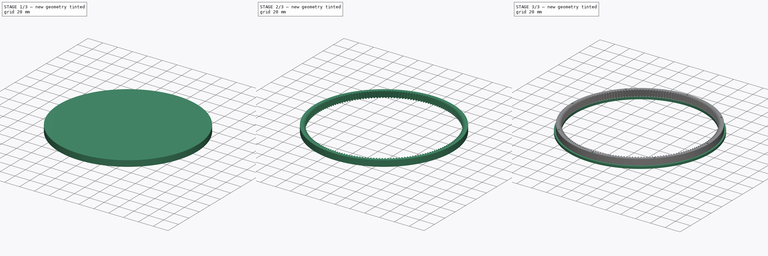
[diagram: build sequence overview — one tinted view per stage of 3, left to right]
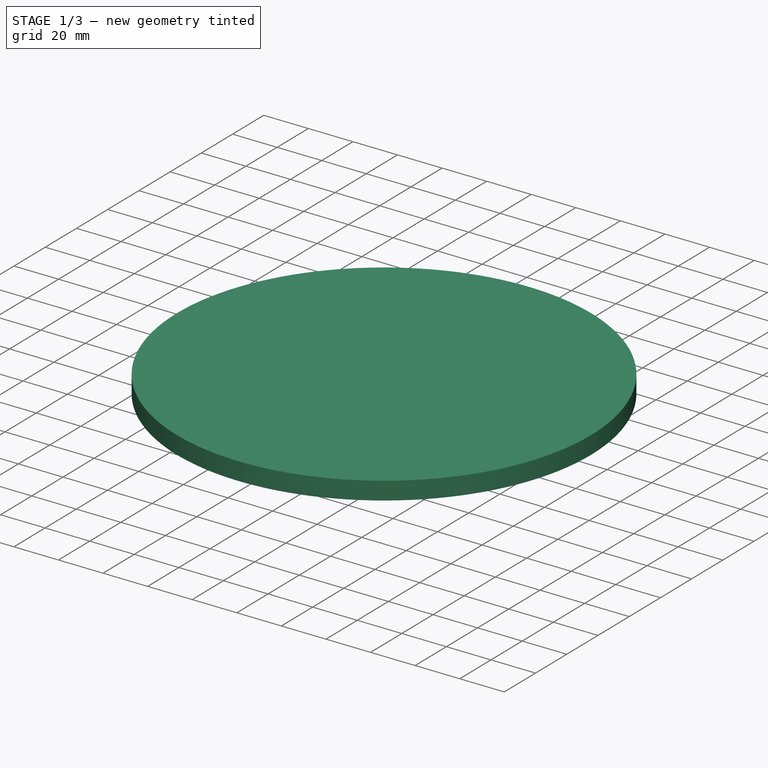
[diagram: stage 1 of 3 — iso view after this stage's code; geometry added in this stage tinted green]
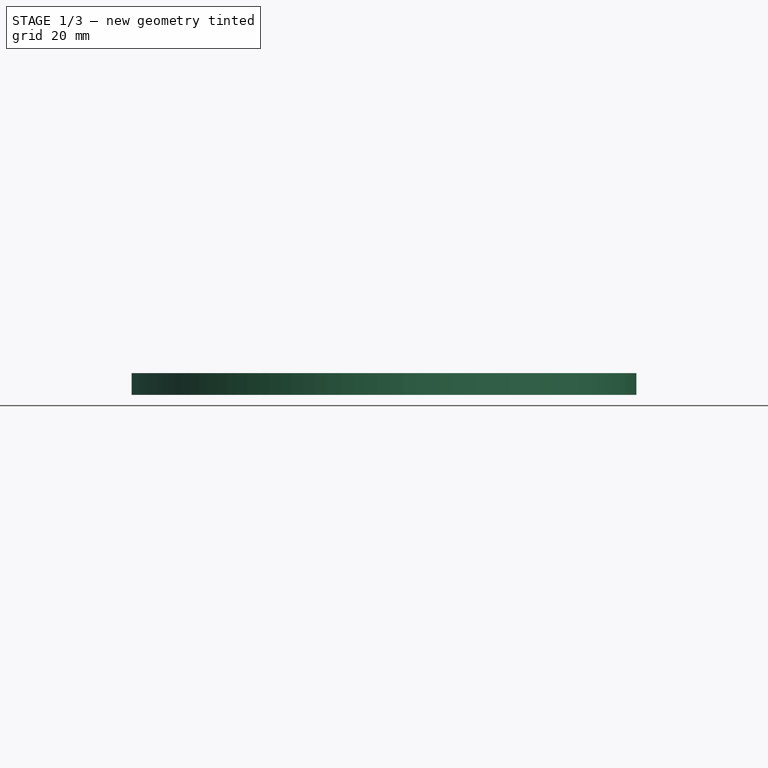
[diagram: stage 1 of 3 — front view after this stage's code; geometry added in this stage tinted green]
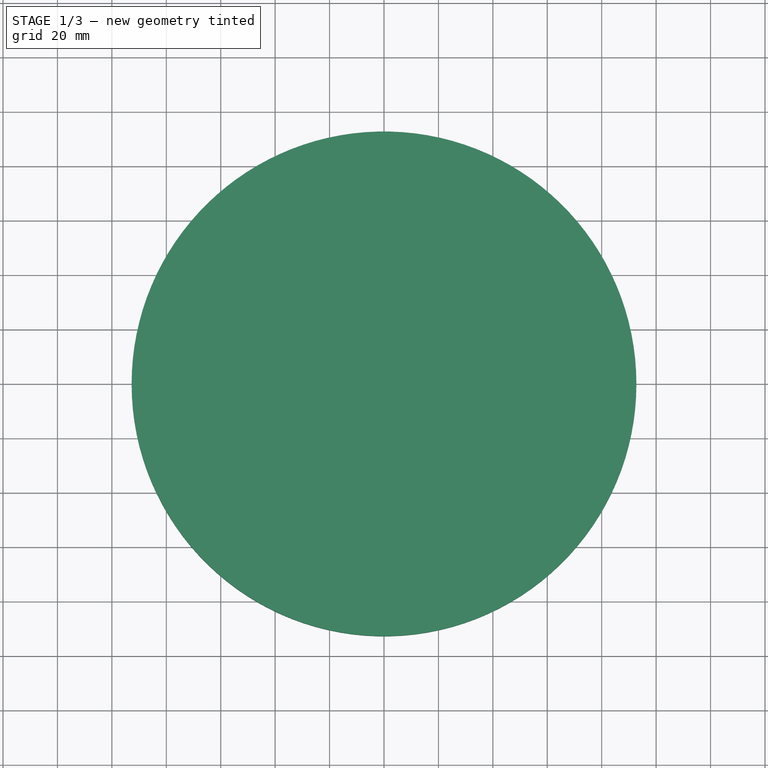
[diagram: stage 1 of 3 — top view after this stage's code; geometry added in this stage tinted green]
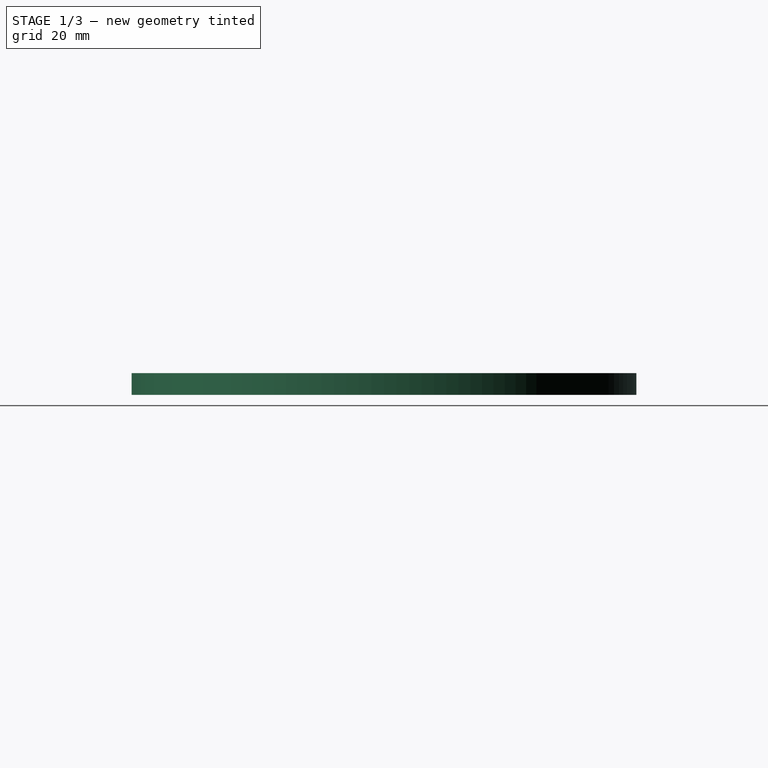
[diagram: stage 1 of 3 — right view after this stage's code; geometry added in this stage tinted green]
FCSTD DOCUMENT  (FreeCAD 0.19R24276 (Git))
Label: Out_gear_t176_d185_5_otv_bort_190_from_part_15
License: All rights reserved
LicenseURL: http://en.wikipedia.org/wiki/All_rights_reserved
objects: Sketcher::SketchObject×2, Part::FeaturePython×1, Part::Cylinder×1, Part::Cut×1, PartDesign::FeatureBase×1, PartDesign::Pad×1, PartDesign::Pocket×1, PartDesign::Body×1
note: 11 computed .brp shape members not serialized (recipe doc carries the construction recipe); baked Part::Feature solids carry a one-line shape summary decoded from their .brp

FEATURE [Part::FeaturePython] involutegear  # WARN: FeaturePython — macro-defined, semantics opaque (R4)
  AttacherType = Attacher::AttachEngine3D
  backlash = 0
  beta = 0
  clearance = 0.25
  da = 178
  df = 173.5
  double_helix = false
  dw = 176
  head = 0
  height = 8
  module = 1
  numpoints = 6
  pressure_angle = 20
  properties_from_tool = false
  reversed_backlash = false
  shift = 0
  simple = false
  teeth = 176
  transverse_pitch = 3.14159
  undercut = false
  version = 0.0.3
FEATURE [Part::Cylinder] Cylinder  label="Цилиндр"
  Angle = 360
  AttacherType = Attacher::AttachEngine3D
  Height = 8
  Radius = 92.75
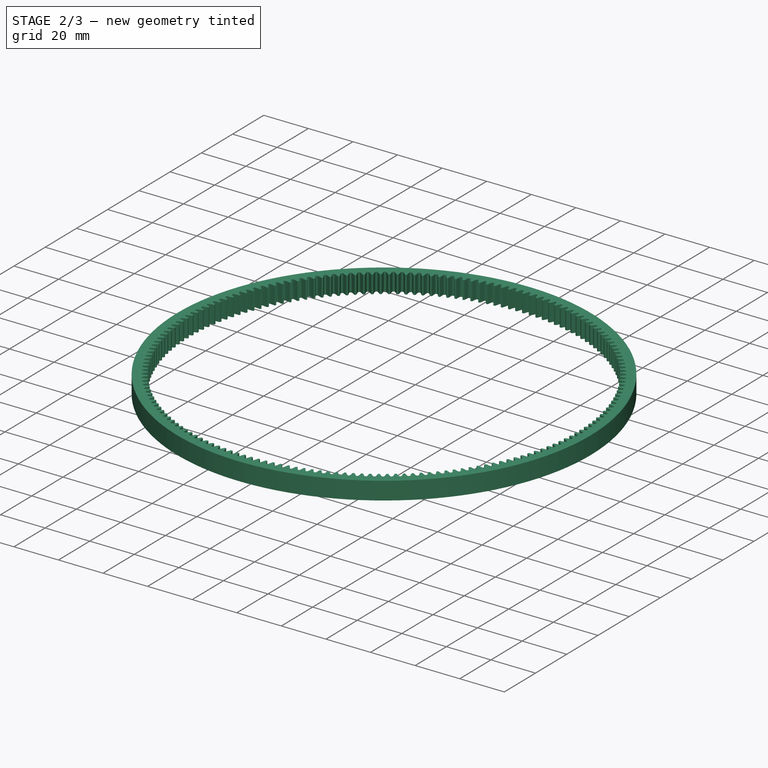
[diagram: stage 2 of 3 — iso view after this stage's code; geometry added in this stage tinted green]
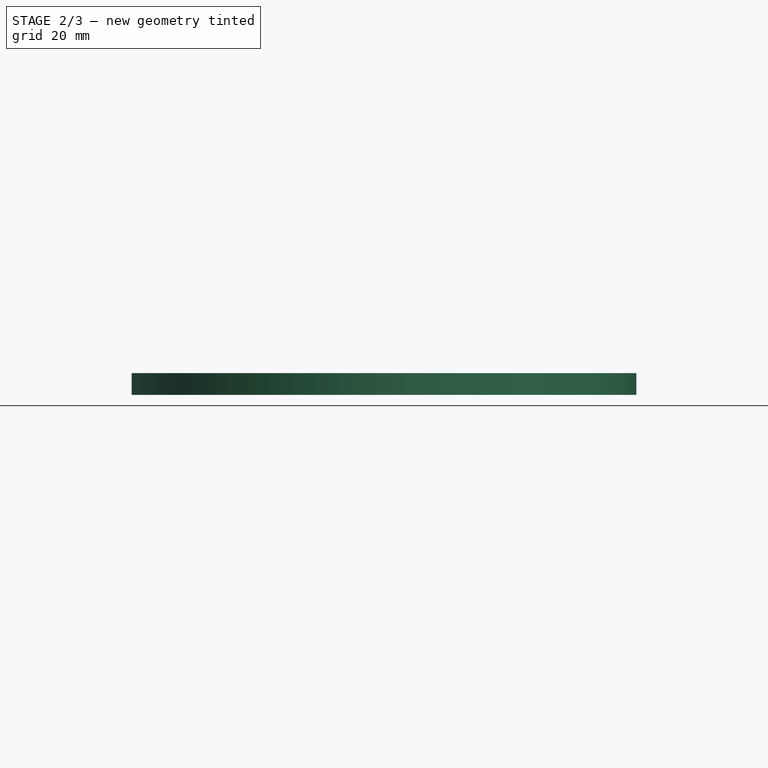
[diagram: stage 2 of 3 — front view after this stage's code; geometry added in this stage tinted green]
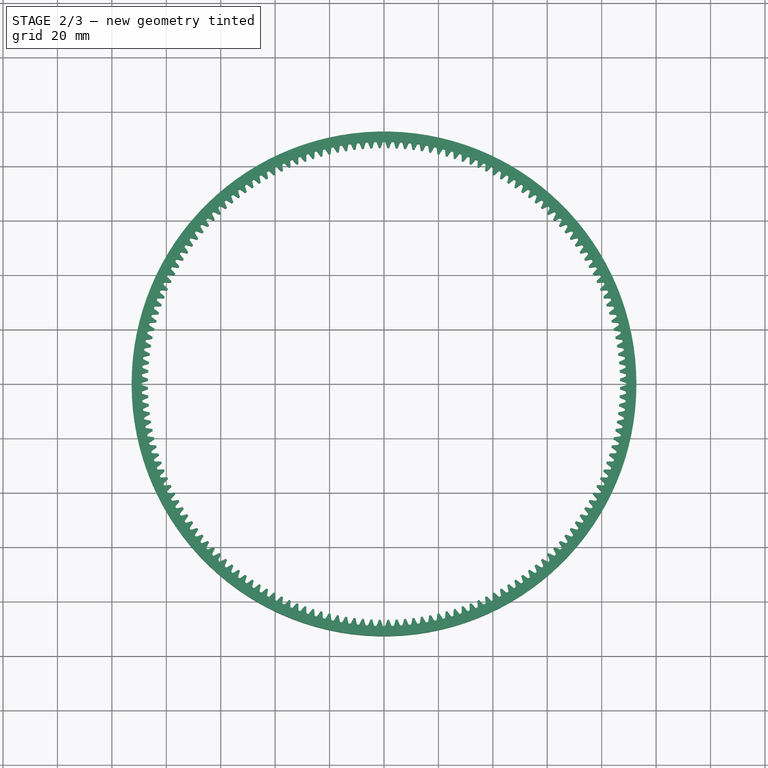
[diagram: stage 2 of 3 — top view after this stage's code; geometry added in this stage tinted green]
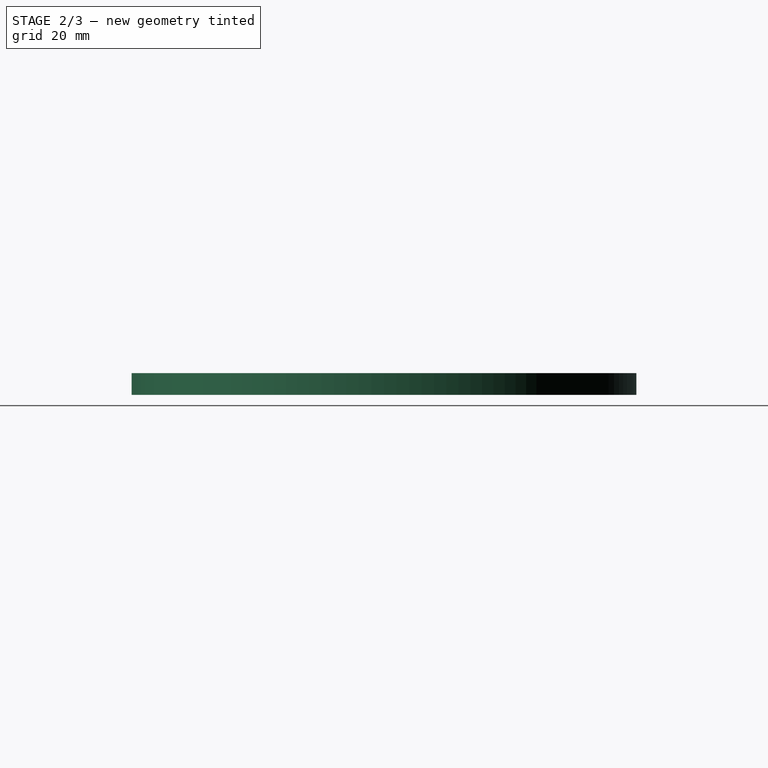
[diagram: stage 2 of 3 — right view after this stage's code; geometry added in this stage tinted green]
FEATURE [Part::Cut] Cut
  Base = -> Cylinder
  Tool = -> involutegear
FEATURE [Sketcher::SketchObject] Sketch
  FullyConstrained = false
  MapMode = 5
  Support = -> [XY_Plane]
  sketch-geometry (17):
    g0: LineSegment StartX=0 StartY=0 StartZ=0 EndX=64.3467 EndY=64.3467 EndZ=0
    g1: Circle CenterX=0 CenterY=0 CenterZ=0 NormalX=0 NormalY=0 NormalZ=1 AngleXU=0 Radius=91
    g2: Circle CenterX=64.3467 CenterY=64.3467 CenterZ=0 NormalX=0 NormalY=0 NormalZ=1 AngleXU=0 Radius=1.1
    g3: LineSegment StartX=0 StartY=0 StartZ=0 EndX=-1.5e-15 EndY=91 EndZ=0
    g4: LineSegment StartX=0 StartY=0 StartZ=0 EndX=91 EndY=0 EndZ=0
    g5: Circle CenterX=-1.5e-15 CenterY=91 CenterZ=0 NormalX=0 NormalY=0 NormalZ=1 AngleXU=0 Radius=1.1
    g6: Circle CenterX=91 CenterY=0 CenterZ=0 NormalX=0 NormalY=0 NormalZ=1 AngleXU=0 Radius=1.1
    g7: Circle CenterX=64.3467 CenterY=-64.3467 CenterZ=0 NormalX=0 NormalY=0 NormalZ=1 AngleXU=0 Radius=1.1
    g8: Circle CenterX=-1.5e-15 CenterY=-91 CenterZ=0 NormalX=0 NormalY=0 NormalZ=1 AngleXU=0 Radius=1.1
    g9: LineSegment StartX=0 StartY=0 StartZ=0 EndX=-1.5e-15 EndY=-91 EndZ=0
    g10: LineSegment StartX=0 StartY=0 StartZ=0 EndX=64.3467 EndY=-64.3467 EndZ=0
    g11: LineSegment StartX=0 StartY=0 StartZ=0 EndX=-64.3467 EndY=-64.3467 EndZ=0
    g12: LineSegment StartX=0 StartY=0 StartZ=0 EndX=-91 EndY=0 EndZ=0
    g13: LineSegment StartX=0 StartY=0 StartZ=0 EndX=-64.3467 EndY=64.3467 EndZ=0
    g14: Circle CenterX=-91 CenterY=0 CenterZ=0 NormalX=0 NormalY=0 NormalZ=1 AngleXU=0 Radius=1.1
    g15: Circle CenterX=-64.3467 CenterY=-64.3467 CenterZ=0 NormalX=0 NormalY=0 NormalZ=1 AngleXU=0 Radius=1.1
    g16: Circle CenterX=-64.3467 CenterY=64.3467 CenterZ=0 NormalX=0 NormalY=0 NormalZ=1 AngleXU=0 Radius=1.1
  constraints (26):
    c: Coincident(g0,g-1)
    c: Coincident(g1,g-1)
    c: Diameter(g1) = 182
    c: PointOnObject(g0,g1)
    c: Coincident(g2,g0)
    c: Diameter(g2) = 2.2
    c: Coincident(g3,g-1)
    c: Coincident(g4,g-1)
    c: PointOnObject(g4,g1)
    c: PointOnObject(g3,g1)
    c: Coincident(g5,g3)
    c: Coincident(g6,g4)
    c: Equal(g6,g2)
    c: Equal(g2,g5)
    c: Angle(g4,g-1) = 0
    c: Angle(g-1,g0) = 0.785398
    c: Angle(g0,g3) = 0.785398
    c: Coincident(g7,g10)
    c: Diameter(g7) = 2.2
    c: Coincident(g8,g9)
    c: Equal(g7,g8)
    c: Angle(g10,g9) = -0.785398
    c: Coincident(g14,g12)
    c: Coincident(g15,g11)
    c: Diameter(g15) = 2.2
    c: Diameter(g16) = 2.2
FEATURE [PartDesign::FeatureBase] BaseFeature
  BaseFeature = -> Cut
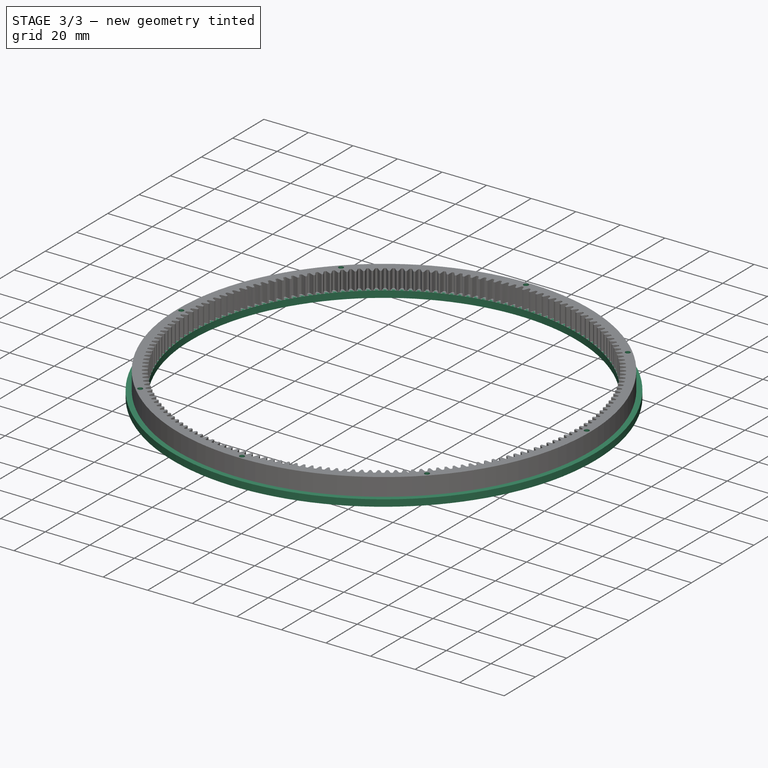
[diagram: stage 3 of 3 — iso view after this stage's code; geometry added in this stage tinted green]
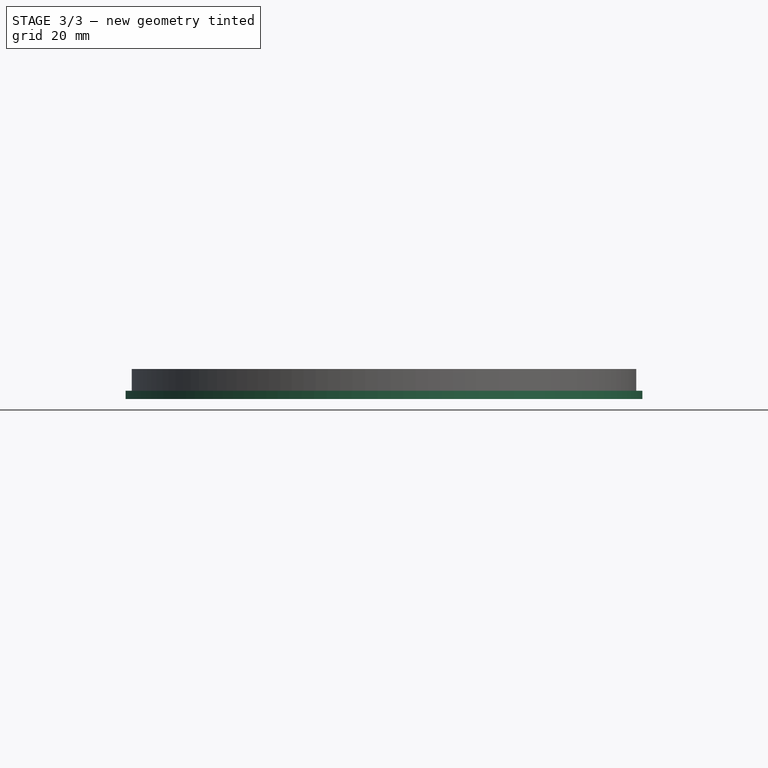
[diagram: stage 3 of 3 — front view after this stage's code; geometry added in this stage tinted green]
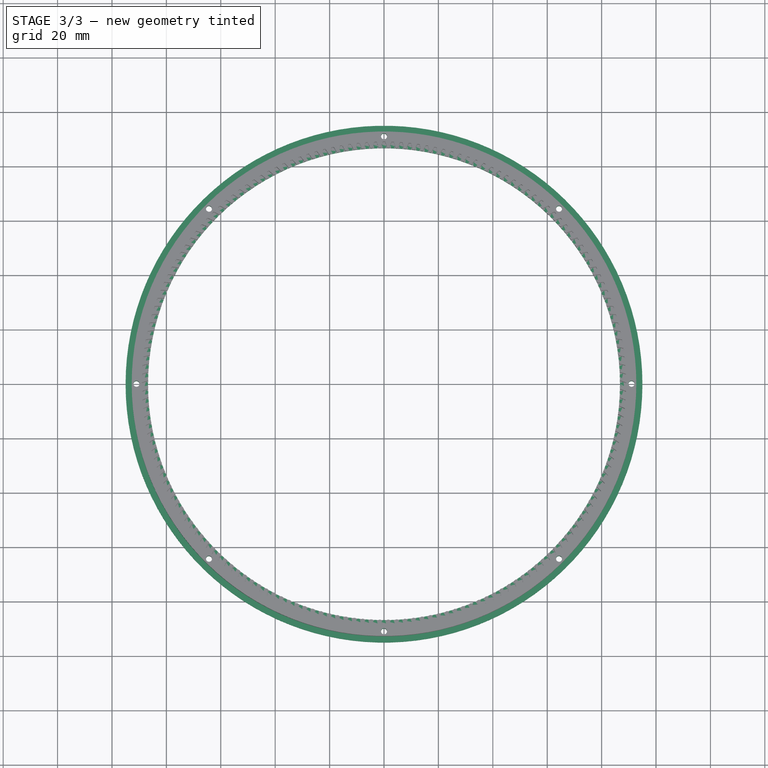
[diagram: stage 3 of 3 — top view after this stage's code; geometry added in this stage tinted green]
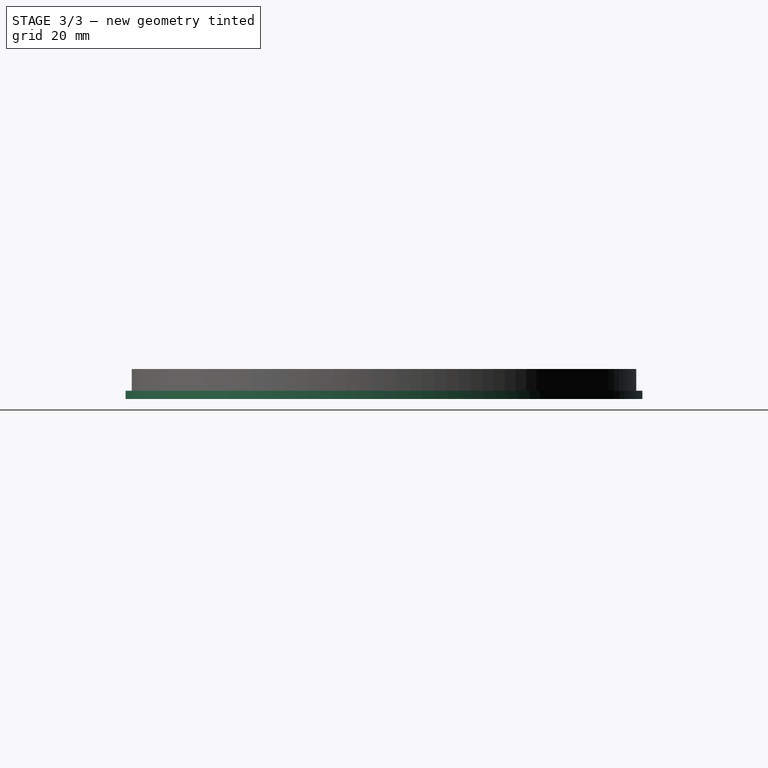
[diagram: stage 3 of 3 — right view after this stage's code; geometry added in this stage tinted green]
FEATURE [Sketcher::SketchObject] Sketch001
  FullyConstrained = true
  MapMode = 5
  Placement = pos=(0,0,0) rot=(1,0,0;3.14159rad)
  sketch-geometry (2):
    g0: Circle CenterX=0 CenterY=0 CenterZ=0 NormalX=0 NormalY=0 NormalZ=1 AngleXU=0 Radius=95
    g1: Circle CenterX=0 CenterY=0 CenterZ=0 NormalX=0 NormalY=0 NormalZ=1 AngleXU=0 Radius=86.75
  constraints (4):
    c: Coincident(g0,g-1)
    c: Diameter(g0) = 190
    c: Coincident(g1,g0)
    c: Diameter(g1) = 173.5
FEATURE [PartDesign::Pad] Pad
  BaseFeature = -> BaseFeature
  Direction = (1,1,1)
  Length = 3
  Length2 = 100
  Profile = -> Sketch001
  Type = 0
FEATURE [PartDesign::Pocket] Pocket
  BaseFeature = -> Pad
  Length = 5
  Length2 = 100
  Midplane = true
  Profile = -> Sketch
  Type = 1
FEATURE [PartDesign::Body] Body
  BaseFeature = -> Cut
  Group = -> [BaseFeature,Sketch001,Pad,Sketch,Pocket]
  Origin = -> Origin
  Tip = -> Pocket
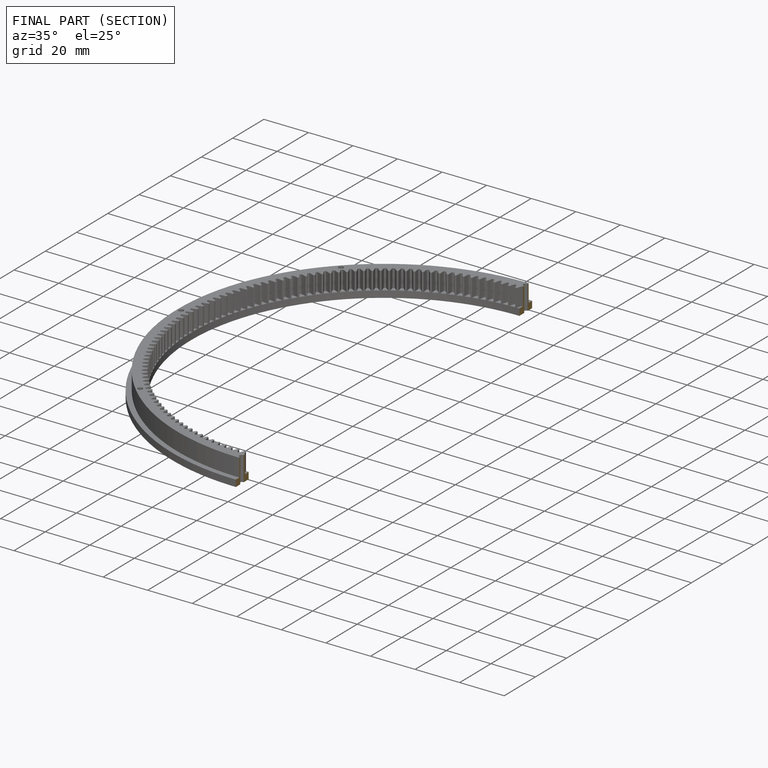
[diagram: finished part — half-section view (interior)]
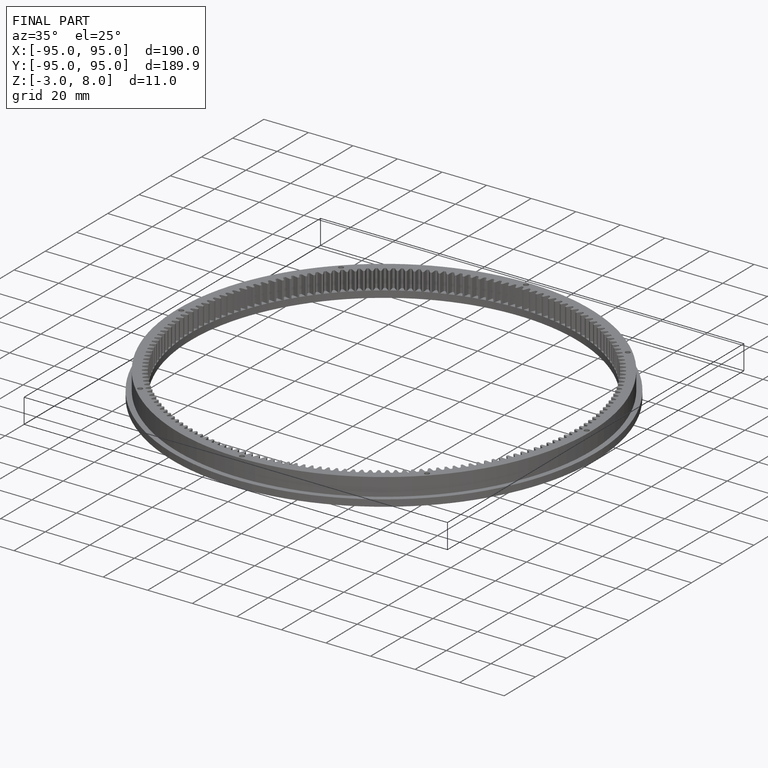
[diagram: finished part — iso view with bounding-box wireframe]
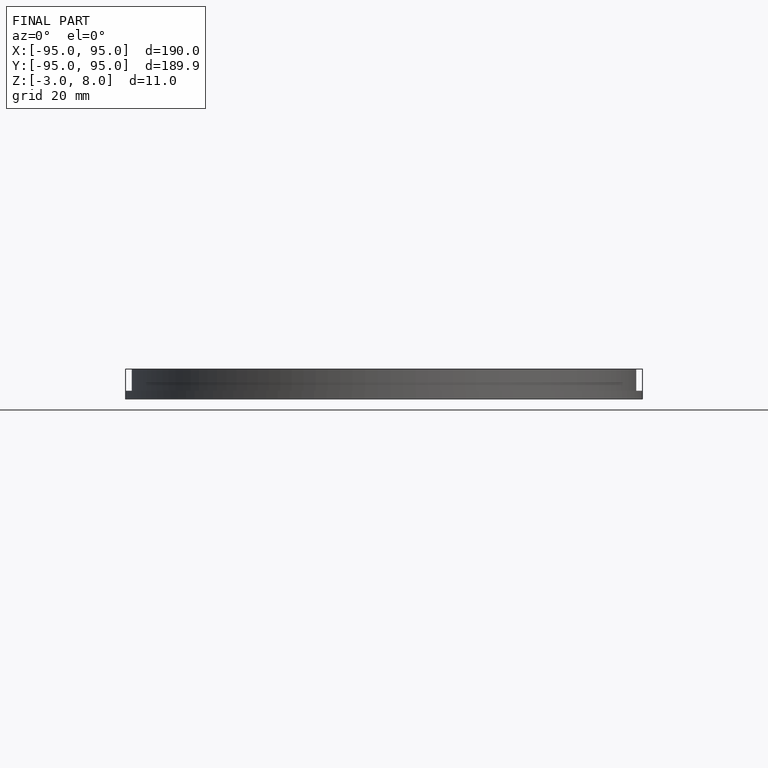
[diagram: finished part — front view with bounding-box wireframe]
